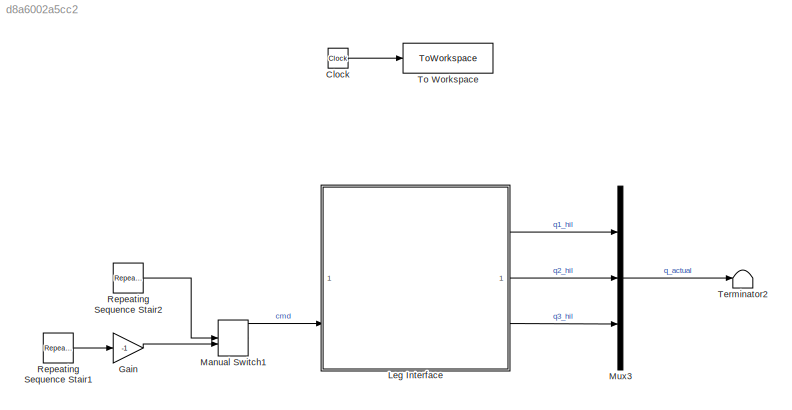
MODEL slx_d8a6002a5cc2
KIND model
CONFIG AbsTol = auto
CONFIG EnableMultiTasking = off
CONFIG FixedStep = auto
CONFIG MaxStep = auto
CONFIG MinStep = auto
CONFIG RelTol = 1e-3
CONFIG SampleTimeConstraint = Unconstrained
CONFIG SolverName = ode23t
CONFIG StartTime = 0.0
CONFIG StopTime = 20
BLOCK [Clock] Clock
  Decimation = 1
BLOCK [Gain] Gain
  Gain = -1
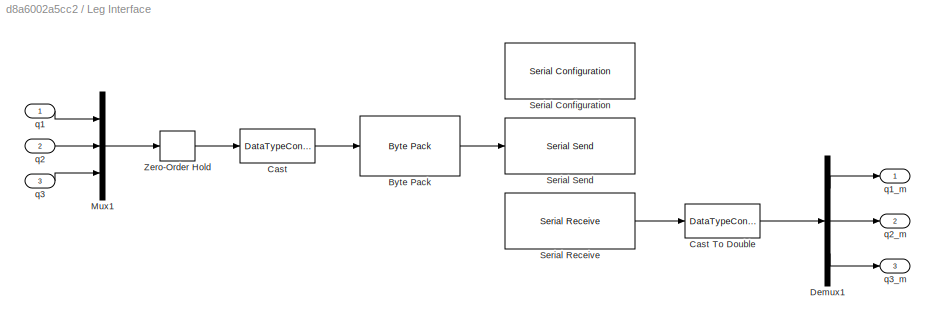
BLOCK [SubSystem] Leg Interface
BLOCK [Reference] Leg Interface/Byte Pack  REF=svdutilitieslib/Byte Pack
  SourceBlock = svdutilitieslib/Byte Pack
  SourceType = Byte pack
BLOCK [DataTypeConversion] Leg Interface/Cast
  OutDataTypeStr = int32
  RndMeth = Floor
  SaturateOnIntegerOverflow = off
BLOCK [DataTypeConversion] Leg Interface/Cast To Double
  OutDataTypeStr = double
  RndMeth = Floor
  SaturateOnIntegerOverflow = off
BLOCK [Demux] Leg Interface/Demux1
  Outputs = 3
BLOCK [Mux] Leg Interface/Mux1
  DisplayOption = bar
  Inputs = 3
BLOCK [Reference] Leg Interface/Serial Configuration  REF=instrumentseriallib/Serial Configuration
  LibrarySourceBlock = instrumentlib/Serial Configuration
  Priority = -200000
  SourceBlock = instrumentseriallib/Serial Configuration
  SourceType = system.SerialConfiguration
BLOCK [Reference] Leg Interface/Serial Receive  REF=instrumentseriallib/Serial Receive
  LibrarySourceBlock = instrumentlib/Serial Receive
  Priority = 1
  SourceBlock = instrumentseriallib/Serial Receive
  SourceType = system.SerialReceive
BLOCK [Reference] Leg Interface/Serial Send  REF=instrumentseriallib/Serial Send
  LibrarySourceBlock = instrumentlib/Serial Send
  Priority = 1
  SourceBlock = instrumentseriallib/Serial Send
  SourceType = system.SerialSend
BLOCK [ZeroOrderHold] Leg Interface/Zero-Order Hold
  SampleTime = 1e-2
BLOCK [Inport] Leg Interface/q1
  NameLocation = left
BLOCK [Outport] Leg Interface/q1_m
  NameLocation = right
BLOCK [Inport] Leg Interface/q2
  NameLocation = left
  Port = 2
BLOCK [Outport] Leg Interface/q2_m
  NameLocation = right
  Port = 2
BLOCK [Inport] Leg Interface/q3
  NameLocation = left
  Port = 3
BLOCK [Outport] Leg Interface/q3_m
  NameLocation = right
  Port = 3
BLOCK [ManualSwitch] Manual Switch1
BLOCK [Mux] Mux3
  DisplayOption = bar
  Inputs = 3
BLOCK [Reference] Repeating Sequence Stair1  REF=simulink/Sources/Repeating
Sequence
Stair
  SourceBlock = simulink/Sources/Repeating\nSequence\nStair
  SourceType = Repeating Sequence Stair
BLOCK [Reference] Repeating Sequence Stair2  REF=simulink/Sources/Repeating
Sequence
Stair
  SourceBlock = simulink/Sources/Repeating\nSequence\nStair
  SourceType = Repeating Sequence Stair
BLOCK [Terminator] Terminator2
BLOCK [ToWorkspace] To Workspace
  FixptAsFi = on
  MaxDataPoints = inf
  SampleTime = 1e-4
  Save2DSignal = 2-D array (concatenate along first dimension)
  VariableName = time
LINE Clock:1 -> To Workspace:1
LINE Gain:1 -> Manual Switch1:2
LINE Leg Interface/Byte Pack:1 -> Leg Interface/Serial Send:1
LINE Leg Interface/Cast To Double:1 -> Leg Interface/Demux1:1
LINE Leg Interface/Cast:1 -> Leg Interface/Byte Pack:1
LINE Leg Interface/Demux1:1 -> Leg Interface/q1_m:1
LINE Leg Interface/Demux1:2 -> Leg Interface/q2_m:1
LINE Leg Interface/Demux1:3 -> Leg Interface/q3_m:1
LINE Leg Interface/Mux1:1 -> Leg Interface/Zero-Order Hold:1
LINE Leg Interface/Serial Receive:1 -> Leg Interface/Cast To Double:1
LINE Leg Interface/Zero-Order Hold:1 -> Leg Interface/Cast:1
LINE Leg Interface/q1:1 -> Leg Interface/Mux1:1
LINE Leg Interface/q2:1 -> Leg Interface/Mux1:2
LINE Leg Interface/q3:1 -> Leg Interface/Mux1:3
LINE Leg Interface:1 -> Mux3:1
LINE Leg Interface:2 -> Mux3:2
LINE Leg Interface:3 -> Mux3:3
LINE Manual Switch1:1 -> Leg Interface:3
LINE Mux3:1 -> Terminator2:1
LINE Repeating Sequence Stair1:1 -> Gain:1
LINE Repeating Sequence Stair2:1 -> Manual Switch1:1
